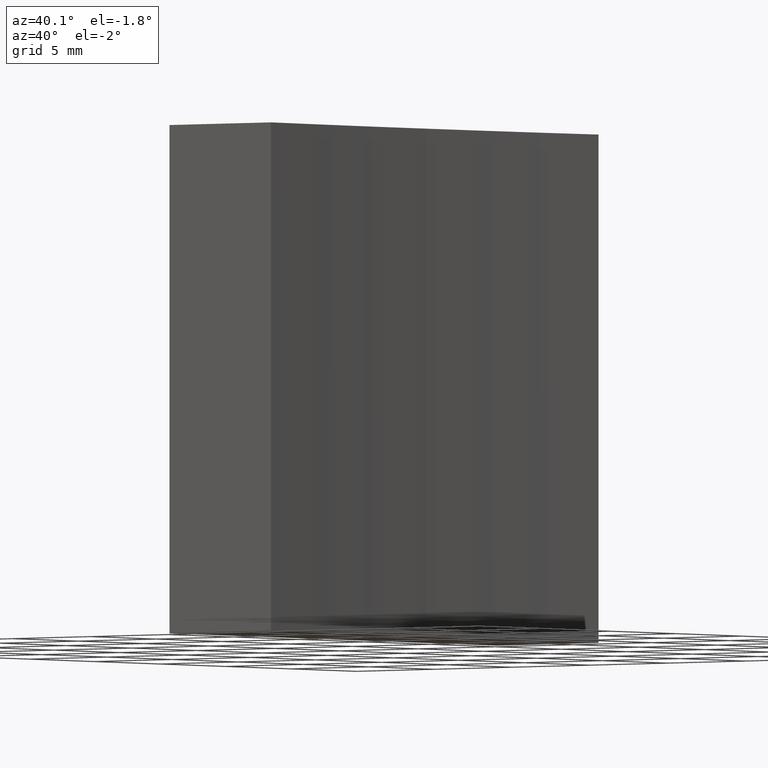
[diagram: clean part render]
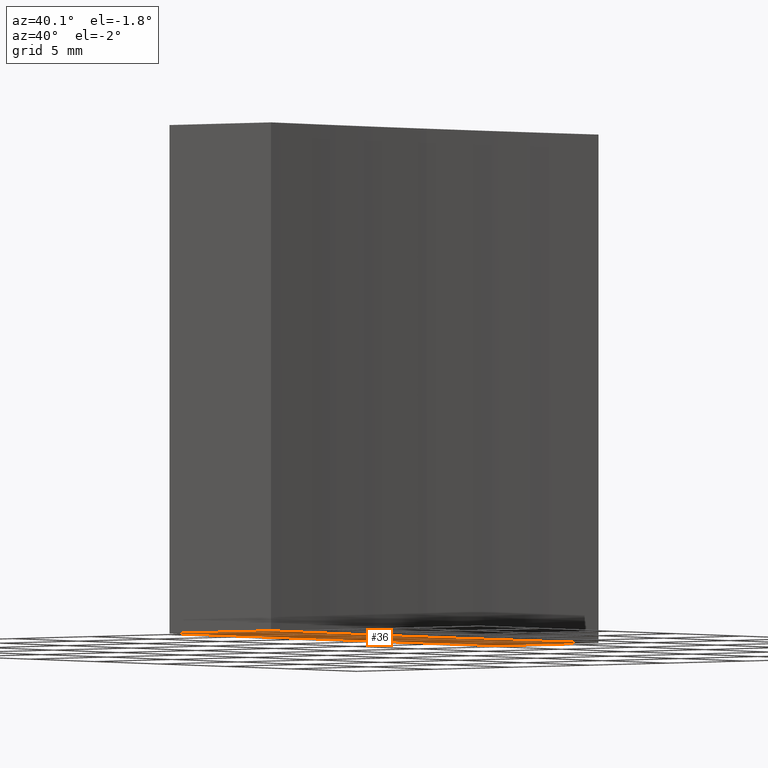
[diagram: same view with one face highlighted and labeled with its STEP entity id]
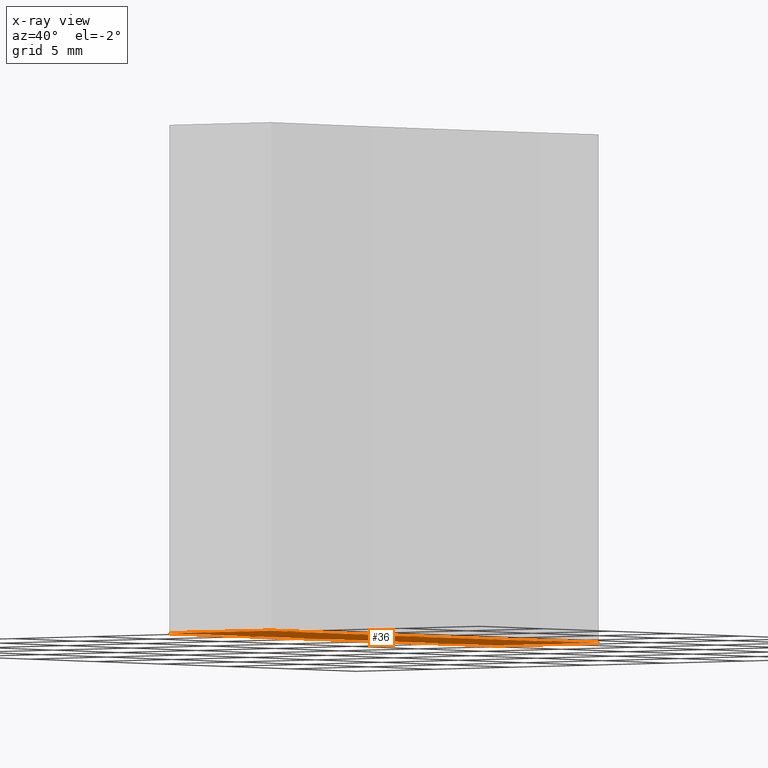
[diagram: x-ray of the same camera — body ghosted, the highlighted face saturated]
A machine part, auxiliary view. The second image highlights one B-rep face of the part: STEP entity #36.
The next image is the same camera in x-ray: the body ghosted, the highlighted face saturated — about 0% of this face is hidden behind the body in this view.
In plain terms, the highlighted planar face has unit normal (0, 0, 1).
Its self-contained STEP definition (entity closure, byte-faithful):
#2 = CARTESIAN_POINT ( 'NONE',  ( 115.0926555349195200, 81.87802112337243400, 0.0000000000000000000 ) ) ;
#5 = CARTESIAN_POINT ( 'NONE',  ( 271.0926557596387700, 69.37802112337249100, 0.0000000000000000000 ) ) ;
#6 = EDGE_CURVE ( 'NONE', #19, #80, #148, .T. ) ;
#15 = ORIENTED_EDGE ( 'NONE', *, *, #105, .F. ) ;
#19 = VERTEX_POINT ( 'NONE', #204 ) ;
#22 = DIRECTION ( 'NONE',  ( 1.000000000000000000, 0.0000000000000000000, 0.0000000000000000000 ) ) ;
#31 = VERTEX_POINT ( 'NONE', #235 ) ;
#35 = AXIS2_PLACEMENT_3D ( 'NONE', #5, #86, #75 ) ;
#36 = ADVANCED_FACE ( 'NONE', ( #92 ), #207, .F. ) ;
#38 = LINE ( 'NONE', #107, #48 ) ;
#43 = ORIENTED_EDGE ( 'NONE', *, *, #6, .F. ) ;
#47 = CARTESIAN_POINT ( 'NONE',  ( 115.0926555349195200, 69.37802112337243400, 0.0000000000000000000 ) ) ;
#48 = VECTOR ( 'NONE', #150, 1000.000000000000000 ) ;
#51 = CARTESIAN_POINT ( 'NONE',  ( 121.0926557596387600, 69.37802112337249100, 0.0000000000000000000 ) ) ;
#62 = EDGE_CURVE ( 'NONE', #31, #19, #100, .T. ) ;
#75 = DIRECTION ( 'NONE',  ( 1.000000000000000000, 0.0000000000000000000, 0.0000000000000000000 ) ) ;
#80 = VERTEX_POINT ( 'NONE', #51 ) ;
#81 = DIRECTION ( 'NONE',  ( -0.0000000000000000000, -0.0000000000000000000, -1.000000000000000000 ) ) ;
#82 = CARTESIAN_POINT ( 'NONE',  ( 271.0926557596387700, 69.37802112337249100, 0.0000000000000000000 ) ) ;
#86 = DIRECTION ( 'NONE',  ( -0.0000000000000000000, -0.0000000000000000000, -1.000000000000000000 ) ) ;
#90 = VECTOR ( 'NONE', #108, 1000.000000000000000 ) ;
#92 = FACE_OUTER_BOUND ( 'NONE', #102, .T. ) ;
#100 = LINE ( 'NONE', #221, #90 ) ;
#102 = EDGE_LOOP ( 'NONE', ( #226, #110, #15, #173, #43 ) ) ;
#105 = EDGE_CURVE ( 'NONE', #115, #179, #38, .T. ) ;
#107 = CARTESIAN_POINT ( 'NONE',  ( 115.0926555349195200, 81.87802112337243400, 0.0000000000000000000 ) ) ;
#108 = DIRECTION ( 'NONE',  ( 1.000000000000000000, 1.063963437378483000E-014, 0.0000000000000000000 ) ) ;
#110 = ORIENTED_EDGE ( 'NONE', *, *, #198, .F. ) ;
#112 = LINE ( 'NONE', #47, #161 ) ;
#113 = AXIS2_PLACEMENT_3D ( 'NONE', #138, #239, #139 ) ;
#115 = VERTEX_POINT ( 'NONE', #124 ) ;
#124 = CARTESIAN_POINT ( 'NONE',  ( 121.6143964708713000, 81.87802112337246300, 0.0000000000000000000 ) ) ;
#138 = CARTESIAN_POINT ( 'NONE',  ( 271.0926557596387700, 69.37802112337249100, 0.0000000000000000000 ) ) ;
#139 = DIRECTION ( 'NONE',  ( 1.000000000000000000, 0.0000000000000000000, -0.0000000000000000000 ) ) ;
#148 = CIRCLE ( 'NONE', #201, 149.9999999999999700 ) ;
#150 = DIRECTION ( 'NONE',  ( -1.000000000000000000, -4.255853749513932300E-015, -0.0000000000000000000 ) ) ;
#161 = VECTOR ( 'NONE', #184, 1000.000000000000000 ) ;
#173 = ORIENTED_EDGE ( 'NONE', *, *, #195, .F. ) ;
#179 = VERTEX_POINT ( 'NONE', #2 ) ;
#184 = DIRECTION ( 'NONE',  ( -0.0000000000000000000, -1.000000000000000000, -0.0000000000000000000 ) ) ;
#186 = CIRCLE ( 'NONE', #35, 149.9999999999999700 ) ;
#195 = EDGE_CURVE ( 'NONE', #80, #115, #186, .T. ) ;
#198 = EDGE_CURVE ( 'NONE', #179, #31, #112, .T. ) ;
#201 = AXIS2_PLACEMENT_3D ( 'NONE', #82, #81, #22 ) ;
#204 = CARTESIAN_POINT ( 'NONE',  ( 121.6143964708712700, 56.87802112337257700, 0.0000000000000000000 ) ) ;
#207 = PLANE ( 'NONE',  #113 ) ;
#221 = CARTESIAN_POINT ( 'NONE',  ( 115.0926555349195200, 56.87802112337244200, 0.0000000000000000000 ) ) ;
#226 = ORIENTED_EDGE ( 'NONE', *, *, #62, .F. ) ;
#235 = CARTESIAN_POINT ( 'NONE',  ( 115.0926555349195200, 56.87802112337244200, 0.0000000000000000000 ) ) ;
#239 = DIRECTION ( 'NONE',  ( 0.0000000000000000000, 0.0000000000000000000, 1.000000000000000000 ) ) ;